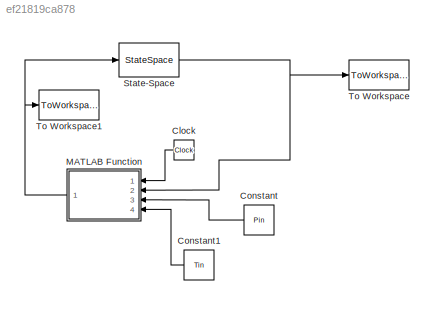
MODEL slx_ef21819ca878
KIND model
BLOCK [Clock] Clock
BLOCK [Constant] Constant
  Value = Pin
BLOCK [Constant] Constant1
  Value = Tin
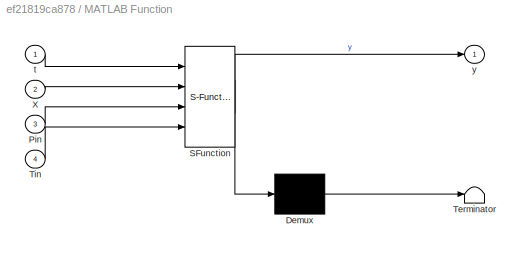
BLOCK [SubSystem] MATLAB Function
  ErrorFcn = Stateflow.Translate.translate
  PermitHierarchicalResolution = ExplicitOnly
  Ports = [4, 1]
  RequestExecContextInheritance = off
  SFBlockType = MATLAB Function
  TreatAsAtomicUnit = on
BLOCK [Demux] MATLAB Function/ Demux 
  Outputs = 1
  Ports = [1, 1]
BLOCK [S-Function] MATLAB Function/ SFunction 
  EnableBusSupport = on
  FunctionName = sf_sfun
  PortCounts = [4 2]
  Ports = [4, 2]
  Tag = Stateflow S-Function simulink_exo1 2
BLOCK [Terminator] MATLAB Function/ Terminator 
BLOCK [Inport] MATLAB Function/Pin
  IconDisplay = Port number
  Port = 3
BLOCK [Inport] MATLAB Function/Tin
  IconDisplay = Port number
  Port = 4
BLOCK [Inport] MATLAB Function/X
  IconDisplay = Port number
  Port = 2
BLOCK [Inport] MATLAB Function/t
  IconDisplay = Port number
BLOCK [Outport] MATLAB Function/y
  IconDisplay = Port number
BLOCK [StateSpace] State-Space
  A = A
  B = B
  C = [1 0; 0 1]
  D = [0;0]
  Ports = [1, 1]
  X0 = [2;1]
BLOCK [ToWorkspace] To Workspace
  FixptAsFi = on
  MaxDataPoints = inf
  Ports = [1]
  SampleTime = -1
  Save2DSignal = 3-D array (concatenate along third dimension)
  SaveFormat = Timeseries
  VariableName = xsim
BLOCK [ToWorkspace] To Workspace1
  FixptAsFi = on
  MaxDataPoints = inf
  Ports = [1]
  SampleTime = -1
  Save2DSignal = 3-D array (concatenate along third dimension)
  SaveFormat = Timeseries
  VariableName = comsim
LINE Clock:1 -> MATLAB Function:1
LINE Constant1:1 -> MATLAB Function:4
LINE Constant:1 -> MATLAB Function:3
NET MATLAB Function:1 -> State-Space:1, To Workspace1:1
NET State-Space:1 -> MATLAB Function:2, To Workspace:1
note: NET lines group one-source signal fan-out (src -> all destinations, sorted); 1:1 wires keep LINE
